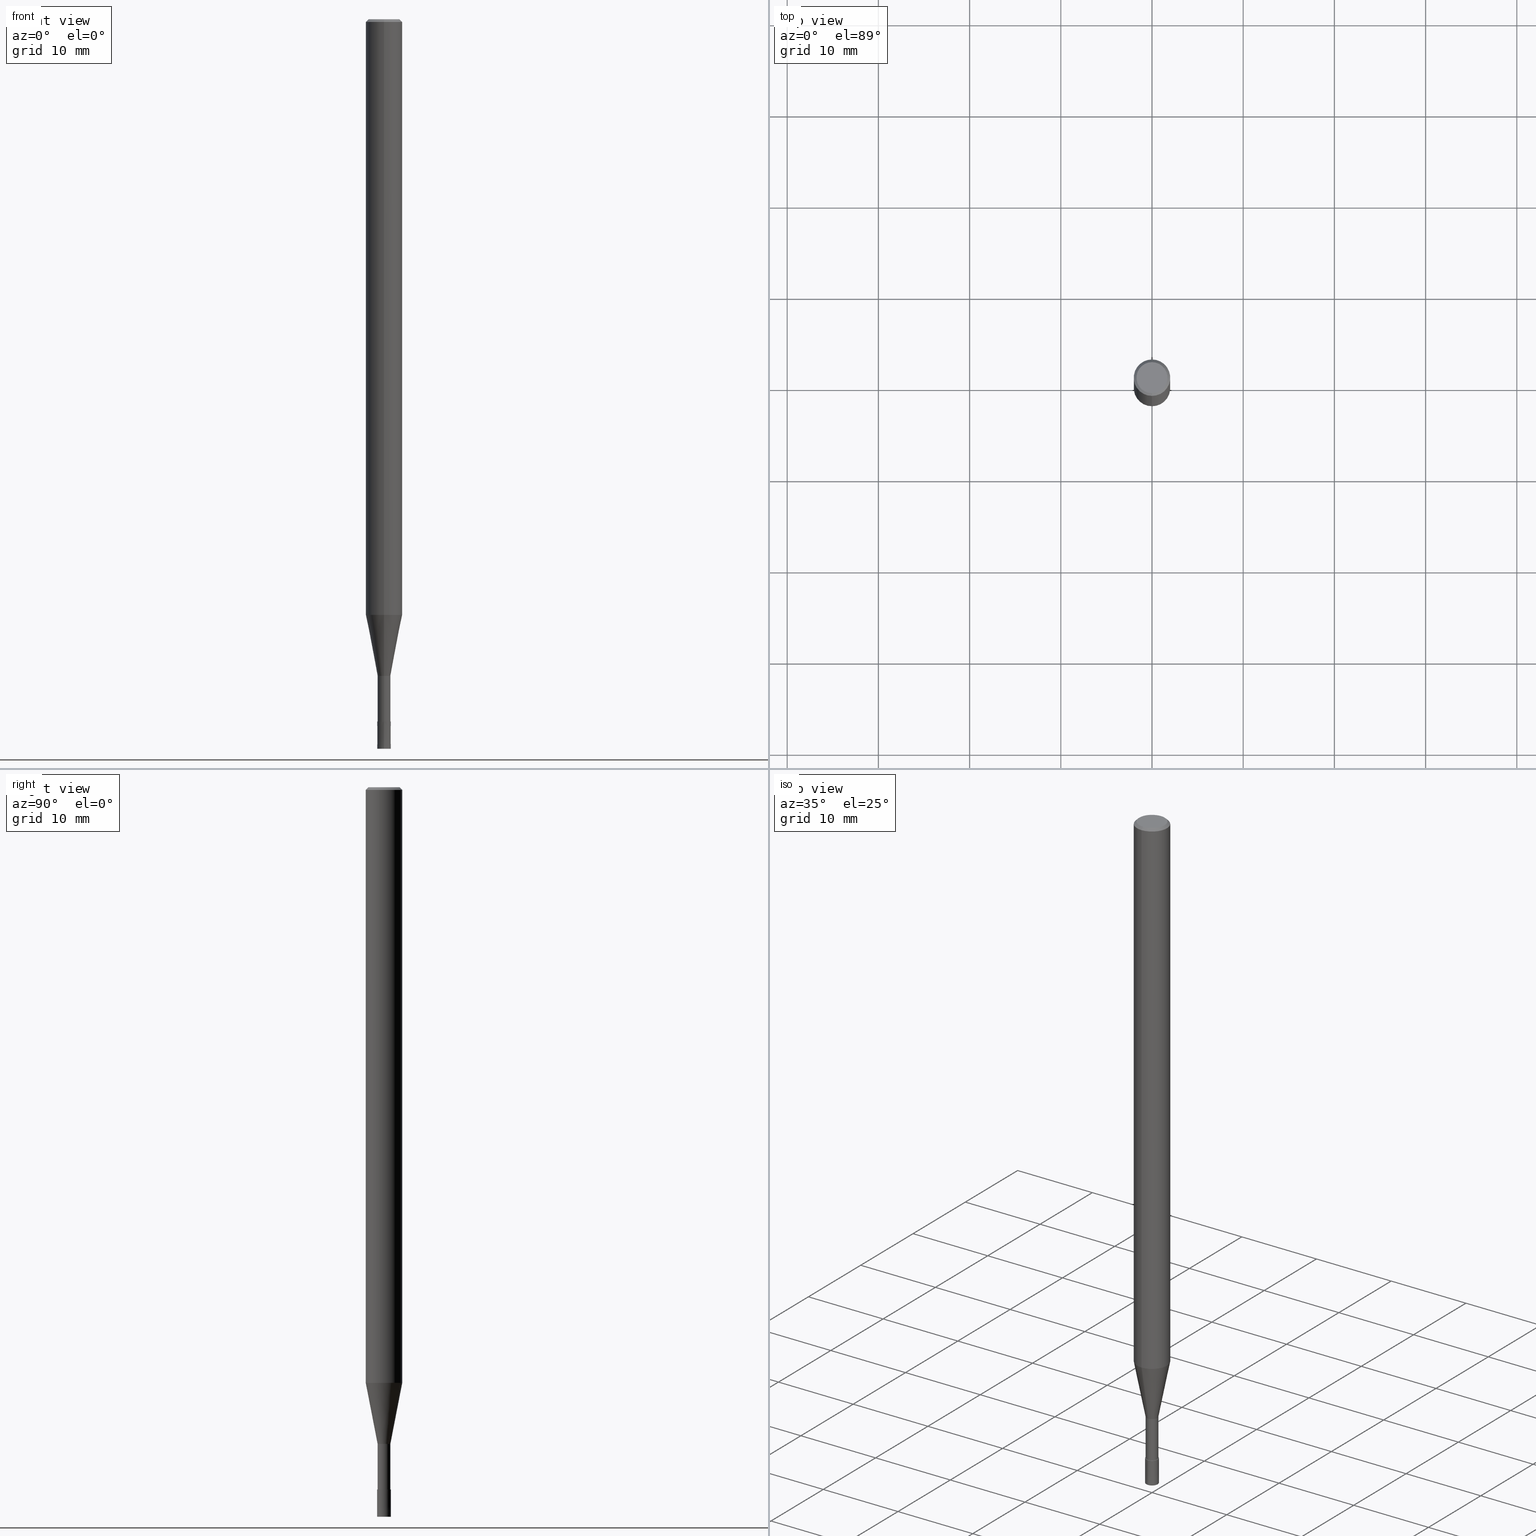
[diagram: canonical four-view strip — front | top / right | iso, engineering-drawing reading convention]
A machine part, canonical four-view strip (front | top / right | iso — engineering-drawing reading convention). The complete STEP part file that produces these views, byte-faithful:
ISO-10303-21;
HEADER;
FILE_DESCRIPTION(('no description'),'unknown implementation level');
FILE_NAME('CPRL2015-8-Huellk.stp','  ',('CIMSOURCE GmbH'),('CADClick - KiM GmbH - www.kimweb.de'),'unknown preprocess','ACIS','unknown authorization');
FILE_SCHEMA(('automotive_design'));
ENDSEC;
DATA;
#1=MECHANICAL_DESIGN_GEOMETRIC_PRESENTATION_REPRESENTATION(' ',(#14,#15,#16,#17,#18,#19,#20,#21,#22,#23,#24,#25,#26,#27,#28,#29,#30,#31,#32,#33,#34,#35,#36,#37,#38,#39,#40,#41,#42,#43,#44,#45,#46,#47,#48,#49,#50,#51,#52,#53,#54,#55,#56,#57,#58,#59,#60,#61,#62,#63,#64,#65,#66,#67,#68,#69,#70,#71,#72),#10);
#2=PRODUCT_DEFINITION_CONTEXT('',#73,'design');
#3=APPLICATION_PROTOCOL_DEFINITION('INTERNATIONAL STANDARD','automotive_design',1994,#73);
#4=PRODUCT_CATEGORY_RELATIONSHIP('NONE','NONE',#74,#75);
#5=SHAPE_DEFINITION_REPRESENTATION(#76,#77);
#6=PRODUCT_DEFINITION_CONTEXT('',#78,'design');
#7=APPLICATION_PROTOCOL_DEFINITION('INTERNATIONAL STANDARD','automotive_design',1994,#78);
#8=PRODUCT_CATEGORY_RELATIONSHIP('NONE','NONE',#79,#80);
#9=SHAPE_DEFINITION_REPRESENTATION(#81,#82);
#10= (GEOMETRIC_REPRESENTATION_CONTEXT(3)GLOBAL_UNCERTAINTY_ASSIGNED_CONTEXT((#85))GLOBAL_UNIT_ASSIGNED_CONTEXT((#87,#88,#89))REPRESENTATION_CONTEXT('NONE','WORKSPACE'));
#14=STYLED_ITEM('',(#91),#92);
#15=STYLED_ITEM('',(#93),#94);
#16=STYLED_ITEM('',(#95),#96);
#17=STYLED_ITEM('',(#97),#98);
#18=STYLED_ITEM('',(#99),#100);
#19=STYLED_ITEM('',(#101),#102);
#20=STYLED_ITEM('',(#103),#104);
#21=STYLED_ITEM('',(#105),#106);
#22=STYLED_ITEM('',(#107),#108);
#23=STYLED_ITEM('',(#109),#110);
#24=STYLED_ITEM('',(#111),#112);
#25=STYLED_ITEM('',(#113),#114);
#26=STYLED_ITEM('',(#115),#116);
#27=STYLED_ITEM('',(#117),#118);
#28=STYLED_ITEM('',(#119),#120);
#29=STYLED_ITEM('',(#121),#122);
#30=STYLED_ITEM('',(#123),#124);
#31=STYLED_ITEM('',(#125),#126);
#32=STYLED_ITEM('',(#127),#128);
#33=STYLED_ITEM('',(#129),#130);
#34=STYLED_ITEM('',(#131),#132);
#35=STYLED_ITEM('',(#133),#134);
#36=STYLED_ITEM('',(#135),#136);
#37=STYLED_ITEM('',(#137),#138);
#38=STYLED_ITEM('',(#139),#140);
#39=STYLED_ITEM('',(#141),#142);
#40=STYLED_ITEM('',(#143),#144);
#41=STYLED_ITEM('',(#145),#146);
#42=STYLED_ITEM('',(#147),#148);
#43=STYLED_ITEM('',(#149),#150);
#44=STYLED_ITEM('',(#151),#152);
#45=STYLED_ITEM('',(#153),#154);
#46=STYLED_ITEM('',(#155),#156);
#47=STYLED_ITEM('',(#157),#158);
#48=STYLED_ITEM('',(#159),#160);
#49=STYLED_ITEM('',(#161),#162);
#50=STYLED_ITEM('',(#163),#164);
#51=STYLED_ITEM('',(#165),#166);
#52=STYLED_ITEM('',(#167),#168);
#53=STYLED_ITEM('',(#169),#170);
#54=STYLED_ITEM('',(#171),#172);
#55=STYLED_ITEM('',(#173),#174);
#56=STYLED_ITEM('',(#175),#176);
#57=STYLED_ITEM('',(#177),#178);
#58=STYLED_ITEM('',(#179),#180);
#59=STYLED_ITEM('',(#181),#182);
#60=STYLED_ITEM('',(#183),#184);
#61=STYLED_ITEM('',(#185),#186);
#62=STYLED_ITEM('',(#187),#188);
#63=STYLED_ITEM('',(#189),#190);
#64=STYLED_ITEM('',(#191),#192);
#65=STYLED_ITEM('',(#193),#194);
#66=STYLED_ITEM('',(#195),#196);
#67=STYLED_ITEM('',(#197),#198);
#68=STYLED_ITEM('',(#199),#200);
#69=STYLED_ITEM('',(#201),#202);
#70=STYLED_ITEM('',(#203),#204);
#71=STYLED_ITEM('',(#205),#206);
#72=STYLED_ITEM('',(#207),#208);
#73=APPLICATION_CONTEXT(' ');
#74=PRODUCT_CATEGORY('part','NONE');
#75=PRODUCT_RELATED_PRODUCT_CATEGORY('detail',' ',(#209));
#76=PRODUCT_DEFINITION_SHAPE('NONE','NONE',#210);
#77=ADVANCED_BREP_SHAPE_REPRESENTATION('1',(#196,#211),#10);
#78=APPLICATION_CONTEXT(' ');
#79=PRODUCT_CATEGORY('part','NONE');
#80=PRODUCT_RELATED_PRODUCT_CATEGORY('detail',' ',(#212));
#81=PRODUCT_DEFINITION_SHAPE('NONE','NONE',#213);
#82=ADVANCED_BREP_SHAPE_REPRESENTATION('2',(#200,#214),#10);
#85=UNCERTAINTY_MEASURE_WITH_UNIT(LENGTH_MEASURE(1.0E-006),#87,'','');
#87= (CONVERSION_BASED_UNIT('MILLIMETRE',#217)LENGTH_UNIT()NAMED_UNIT(#220));
#88= (NAMED_UNIT(#222)PLANE_ANGLE_UNIT()SI_UNIT($,.RADIAN.));
#89= (NAMED_UNIT(#222)SOLID_ANGLE_UNIT()SI_UNIT($,.STERADIAN.));
#91=PRESENTATION_STYLE_ASSIGNMENT((#228));
#92=EDGE_CURVE('',#126,#120,#229,.T.);
#93=PRESENTATION_STYLE_ASSIGNMENT((#230));
#94=ADVANCED_FACE('',(#231),#232,.T.);
#95=PRESENTATION_STYLE_ASSIGNMENT((#233));
#96=EDGE_CURVE('',#168,#104,#234,.T.);
#97=PRESENTATION_STYLE_ASSIGNMENT((#235));
#98=EDGE_CURVE('',#190,#208,#236,.T.);
#99=PRESENTATION_STYLE_ASSIGNMENT((#237));
#100=ADVANCED_FACE('',(#238),#239,.T.);
#101=PRESENTATION_STYLE_ASSIGNMENT((#240));
#102=ADVANCED_FACE('',(#241),#242,.T.);
#103=PRESENTATION_STYLE_ASSIGNMENT((#243));
#104=VERTEX_POINT('',#244);
#105=PRESENTATION_STYLE_ASSIGNMENT((#245));
#106=EDGE_CURVE('',#168,#184,#246,.T.);
#107=PRESENTATION_STYLE_ASSIGNMENT((#247));
#108=EDGE_CURVE('',#120,#126,#248,.T.);
#109=PRESENTATION_STYLE_ASSIGNMENT((#249));
#110=VERTEX_POINT('',#250);
#111=PRESENTATION_STYLE_ASSIGNMENT((#251));
#112=EDGE_CURVE('',#162,#164,#252,.T.);
#113=PRESENTATION_STYLE_ASSIGNMENT((#253));
#114=EDGE_CURVE('',#140,#184,#254,.T.);
#115=PRESENTATION_STYLE_ASSIGNMENT((#255));
#116=ADVANCED_FACE('',(#256,#257),#258,.T.);
#117=PRESENTATION_STYLE_ASSIGNMENT((#259));
#118=EDGE_CURVE('',#208,#150,#260,.T.);
#119=PRESENTATION_STYLE_ASSIGNMENT((#261));
#120=VERTEX_POINT('',#262);
#121=PRESENTATION_STYLE_ASSIGNMENT((#263));
#122=EDGE_CURVE('',#172,#164,#264,.T.);
#123=PRESENTATION_STYLE_ASSIGNMENT((#265));
#124=EDGE_CURVE('',#120,#172,#266,.T.);
#125=PRESENTATION_STYLE_ASSIGNMENT((#267));
#126=VERTEX_POINT('',#268);
#127=PRESENTATION_STYLE_ASSIGNMENT((#269));
#128=EDGE_CURVE('',#208,#190,#270,.T.);
#129=PRESENTATION_STYLE_ASSIGNMENT((#271));
#130=ADVANCED_FACE('',(#272),#273,.T.);
#131=PRESENTATION_STYLE_ASSIGNMENT((#274));
#132=ADVANCED_FACE('',(#275),#276,.T.);
#133=PRESENTATION_STYLE_ASSIGNMENT((#277));
#134=VERTEX_POINT('',#278);
#135=PRESENTATION_STYLE_ASSIGNMENT((#279));
#136=ADVANCED_FACE('',(#280),#281,.T.);
#137=PRESENTATION_STYLE_ASSIGNMENT((#282));
#138=EDGE_CURVE('',#110,#126,#283,.T.);
#139=PRESENTATION_STYLE_ASSIGNMENT((#284));
#140=VERTEX_POINT('',#285);
#141=PRESENTATION_STYLE_ASSIGNMENT((#286));
#142=ADVANCED_FACE('',(#287),#288,.T.);
#143=PRESENTATION_STYLE_ASSIGNMENT((#289));
#144=VERTEX_POINT('',#290);
#145=PRESENTATION_STYLE_ASSIGNMENT((#291));
#146=ADVANCED_FACE('',(#292),#293,.T.);
#147=PRESENTATION_STYLE_ASSIGNMENT((#294));
#148=ADVANCED_FACE('',(#295),#296,.T.);
#149=PRESENTATION_STYLE_ASSIGNMENT((#297));
#150=VERTEX_POINT('',#298);
#151=PRESENTATION_STYLE_ASSIGNMENT((#299));
#152=ADVANCED_FACE('',(#300),#301,.T.);
#153=PRESENTATION_STYLE_ASSIGNMENT((#302));
#154=EDGE_CURVE('',#144,#198,#303,.T.);
#155=PRESENTATION_STYLE_ASSIGNMENT((#304));
#156=ADVANCED_FACE('',(#305),#306,.T.);
#157=PRESENTATION_STYLE_ASSIGNMENT((#307));
#158=EDGE_CURVE('',#134,#150,#308,.T.);
#159=PRESENTATION_STYLE_ASSIGNMENT((#309));
#160=ADVANCED_FACE('',(#310),#311,.T.);
#161=PRESENTATION_STYLE_ASSIGNMENT((#312));
#162=VERTEX_POINT('',#313);
#163=PRESENTATION_STYLE_ASSIGNMENT((#314));
#164=VERTEX_POINT('',#315);
#165=PRESENTATION_STYLE_ASSIGNMENT((#316));
#166=EDGE_CURVE('',#110,#172,#317,.T.);
#167=PRESENTATION_STYLE_ASSIGNMENT((#318));
#168=VERTEX_POINT('',#319);
#169=PRESENTATION_STYLE_ASSIGNMENT((#320));
#170=EDGE_CURVE('',#164,#162,#321,.T.);
#171=PRESENTATION_STYLE_ASSIGNMENT((#322));
#172=VERTEX_POINT('',#323);
#173=PRESENTATION_STYLE_ASSIGNMENT((#324));
#174=EDGE_CURVE('',#162,#110,#325,.T.);
#175=PRESENTATION_STYLE_ASSIGNMENT((#326));
#176=ADVANCED_FACE('',(#327),#328,.T.);
#177=PRESENTATION_STYLE_ASSIGNMENT((#329));
#178=EDGE_CURVE('',#190,#198,#330,.T.);
#179=PRESENTATION_STYLE_ASSIGNMENT((#331));
#180=EDGE_CURVE('',#144,#208,#332,.T.);
#181=PRESENTATION_STYLE_ASSIGNMENT((#333));
#182=EDGE_CURVE('',#140,#104,#334,.T.);
#183=PRESENTATION_STYLE_ASSIGNMENT((#335));
#184=VERTEX_POINT('',#336);
#185=PRESENTATION_STYLE_ASSIGNMENT((#337));
#186=EDGE_CURVE('',#104,#168,#338,.T.);
#187=PRESENTATION_STYLE_ASSIGNMENT((#339));
#188=EDGE_CURVE('',#184,#140,#340,.T.);
#189=PRESENTATION_STYLE_ASSIGNMENT((#341));
#190=VERTEX_POINT('',#342);
#191=PRESENTATION_STYLE_ASSIGNMENT((#343));
#192=EDGE_CURVE('',#134,#190,#344,.T.);
#193=PRESENTATION_STYLE_ASSIGNMENT((#345));
#194=EDGE_CURVE('',#150,#134,#346,.T.);
#195=PRESENTATION_STYLE_ASSIGNMENT((#347));
#196=MANIFOLD_SOLID_BREP('1',#348);
#197=PRESENTATION_STYLE_ASSIGNMENT((#349));
#198=VERTEX_POINT('',#350);
#199=PRESENTATION_STYLE_ASSIGNMENT((#351));
#200=MANIFOLD_SOLID_BREP('2',#352);
#201=PRESENTATION_STYLE_ASSIGNMENT((#353));
#202=EDGE_CURVE('',#172,#110,#354,.T.);
#203=PRESENTATION_STYLE_ASSIGNMENT((#355));
#204=EDGE_CURVE('',#198,#144,#356,.T.);
#205=PRESENTATION_STYLE_ASSIGNMENT((#357));
#206=ADVANCED_FACE('',(#358),#359,.T.);
#207=PRESENTATION_STYLE_ASSIGNMENT((#360));
#208=VERTEX_POINT('',#361);
#209=PRODUCT('1','1','PART-1-DESC',(#362));
#210=PRODUCT_DEFINITION('NONE','NONE',#363,#2);
#211=AXIS2_PLACEMENT_3D('',#364,#365,#366);
#212=PRODUCT('2','2','PART-2-DESC',(#367));
#213=PRODUCT_DEFINITION('NONE','NONE',#368,#6);
#214=AXIS2_PLACEMENT_3D('',#369,#370,#371);
#217=LENGTH_MEASURE_WITH_UNIT(LENGTH_MEASURE(1.0),#372);
#220=DIMENSIONAL_EXPONENTS(1.0,0.0,0.0,0.0,0.0,0.0,0.0);
#222=DIMENSIONAL_EXPONENTS(0.0,0.0,0.0,0.0,0.0,0.0,0.0);
#228=CURVE_STYLE('',#373,POSITIVE_LENGTH_MEASURE(1.0E-006),#374);
#229=CIRCLE('',#375,0.69995);
#230=SURFACE_STYLE_USAGE(.BOTH.,#376);
#231=FACE_OUTER_BOUND('',#377,.T.);
#232=CYLINDRICAL_SURFACE('',#378,0.69995);
#233=CURVE_STYLE('',#379,POSITIVE_LENGTH_MEASURE(1.0E-006),#380);
#234=CIRCLE('',#381,0.75);
#235=CURVE_STYLE('',#382,POSITIVE_LENGTH_MEASURE(1.0E-006),#383);
#236=CIRCLE('',#384,2.0);
#237=SURFACE_STYLE_USAGE(.BOTH.,#385);
#238=FACE_OUTER_BOUND('',#386,.T.);
#239=CONICAL_SURFACE('',#387,1.34995,0.191983983430966);
#240=SURFACE_STYLE_USAGE(.BOTH.,#388);
#241=FACE_OUTER_BOUND('',#389,.T.);
#242=CONICAL_SURFACE('',#390,1.85,0.785398163397453);
#243=POINT_STYLE(' ',#391,POSITIVE_LENGTH_MEASURE(1.0E-006),#392);
#244=CARTESIAN_POINT('',(0.0,0.75,-80.0));
#245=CURVE_STYLE('',#393,POSITIVE_LENGTH_MEASURE(1.0E-006),#394);
#246=LINE('',#395,#396);
#247=CURVE_STYLE('',#397,POSITIVE_LENGTH_MEASURE(1.0E-006),#398);
#248=CIRCLE('',#399,0.69995);
#249=POINT_STYLE(' ',#400,POSITIVE_LENGTH_MEASURE(1.0E-006),#401);
#250=CARTESIAN_POINT('',(0.0,0.69995,-72.0));
#251=CURVE_STYLE('',#402,POSITIVE_LENGTH_MEASURE(1.0E-006),#403);
#252=CIRCLE('',#404,1.99995);
#253=CURVE_STYLE('',#405,POSITIVE_LENGTH_MEASURE(1.0E-006),#406);
#254=CIRCLE('',#407,0.7499);
#255=SURFACE_STYLE_USAGE(.BOTH.,#408);
#256=FACE_OUTER_BOUND('',#409,.T.);
#257=FACE_BOUND('',#410,.T.);
#258=PLANE('',#411);
#259=CURVE_STYLE('',#412,POSITIVE_LENGTH_MEASURE(1.0E-006),#413);
#260=LINE('',#414,#415);
#261=POINT_STYLE(' ',#416,POSITIVE_LENGTH_MEASURE(1.0E-006),#417);
#262=CARTESIAN_POINT('',(8.57163217357973E-017,-0.69995,-77.0));
#263=CURVE_STYLE('',#418,POSITIVE_LENGTH_MEASURE(1.0E-006),#419);
#264=LINE('',#420,#421);
#265=CURVE_STYLE('',#422,POSITIVE_LENGTH_MEASURE(1.0E-006),#423);
#266=LINE('',#424,#425);
#267=POINT_STYLE(' ',#426,POSITIVE_LENGTH_MEASURE(1.0E-006),#427);
#268=CARTESIAN_POINT('',(0.0,0.69995,-77.0));
#269=CURVE_STYLE('',#428,POSITIVE_LENGTH_MEASURE(1.0E-006),#429);
#270=CIRCLE('',#430,2.0);
#271=SURFACE_STYLE_USAGE(.BOTH.,#431);
#272=FACE_OUTER_BOUND('',#432,.T.);
#273=PLANE('',#433);
#274=SURFACE_STYLE_USAGE(.BOTH.,#434);
#275=FACE_OUTER_BOUND('',#435,.T.);
#276=CONICAL_SURFACE('',#436,0.74995,3.3333333320984E-005);
#277=POINT_STYLE(' ',#437,POSITIVE_LENGTH_MEASURE(1.0E-006),#438);
#278=CARTESIAN_POINT('',(0.0,1.7,0.0));
#279=SURFACE_STYLE_USAGE(.BOTH.,#439);
#280=FACE_OUTER_BOUND('',#440,.T.);
#281=CONICAL_SURFACE('',#441,1.34995,0.191983983430966);
#282=CURVE_STYLE('',#442,POSITIVE_LENGTH_MEASURE(1.0E-006),#443);
#283=LINE('',#444,#445);
#284=POINT_STYLE(' ',#446,POSITIVE_LENGTH_MEASURE(1.0E-006),#447);
#285=CARTESIAN_POINT('',(0.0,0.7499,-77.0));
#286=SURFACE_STYLE_USAGE(.BOTH.,#448);
#287=FACE_OUTER_BOUND('',#449,.T.);
#288=PLANE('',#450);
#289=POINT_STYLE(' ',#451,POSITIVE_LENGTH_MEASURE(1.0E-006),#452);
#290=CARTESIAN_POINT('',(2.44921270764475E-016,-2.0,-65.312));
#291=SURFACE_STYLE_USAGE(.BOTH.,#453);
#292=FACE_OUTER_BOUND('',#454,.T.);
#293=PLANE('',#455);
#294=SURFACE_STYLE_USAGE(.BOTH.,#456);
#295=FACE_OUTER_BOUND('',#457,.T.);
#296=CYLINDRICAL_SURFACE('',#458,2.0);
#297=POINT_STYLE(' ',#459,POSITIVE_LENGTH_MEASURE(1.0E-006),#460);
#298=CARTESIAN_POINT('',(2.08183080149804E-016,-1.7,0.0));
#299=SURFACE_STYLE_USAGE(.BOTH.,#461);
#300=FACE_OUTER_BOUND('',#462,.T.);
#301=CYLINDRICAL_SURFACE('',#463,0.69995);
#302=CURVE_STYLE('',#464,POSITIVE_LENGTH_MEASURE(1.0E-006),#465);
#303=CIRCLE('',#466,2.0);
#304=SURFACE_STYLE_USAGE(.BOTH.,#467);
#305=FACE_OUTER_BOUND('',#468,.T.);
#306=CONICAL_SURFACE('',#469,0.74995,3.3333333320984E-005);
#307=CURVE_STYLE('',#470,POSITIVE_LENGTH_MEASURE(1.0E-006),#471);
#308=CIRCLE('',#472,1.7);
#309=SURFACE_STYLE_USAGE(.BOTH.,#473);
#310=FACE_OUTER_BOUND('',#474,.T.);
#311=PLANE('',#475);
#312=POINT_STYLE(' ',#476,POSITIVE_LENGTH_MEASURE(1.0E-006),#477);
#313=CARTESIAN_POINT('',(0.0,1.99995,-65.312));
#314=POINT_STYLE(' ',#478,POSITIVE_LENGTH_MEASURE(1.0E-006),#479);
#315=CARTESIAN_POINT('',(2.44915147732706E-016,-1.99995,-65.312));
#316=CURVE_STYLE('',#480,POSITIVE_LENGTH_MEASURE(1.0E-006),#481);
#317=CIRCLE('',#482,0.69995);
#318=POINT_STYLE(' ',#483,POSITIVE_LENGTH_MEASURE(1.0E-006),#484);
#319=CARTESIAN_POINT('',(9.18454765366783E-017,-0.75,-80.0));
#320=CURVE_STYLE('',#485,POSITIVE_LENGTH_MEASURE(1.0E-006),#486);
#321=CIRCLE('',#487,1.99995);
#322=POINT_STYLE(' ',#488,POSITIVE_LENGTH_MEASURE(1.0E-006),#489);
#323=CARTESIAN_POINT('',(8.57163217357973E-017,-0.69995,-72.0));
#324=CURVE_STYLE('',#490,POSITIVE_LENGTH_MEASURE(1.0E-006),#491);
#325=LINE('',#492,#493);
#326=SURFACE_STYLE_USAGE(.BOTH.,#494);
#327=FACE_OUTER_BOUND('',#495,.T.);
#328=CONICAL_SURFACE('',#496,1.85,0.785398163397453);
#329=CURVE_STYLE('',#497,POSITIVE_LENGTH_MEASURE(1.0E-006),#498);
#330=LINE('',#499,#500);
#331=CURVE_STYLE('',#501,POSITIVE_LENGTH_MEASURE(1.0E-006),#502);
#332=LINE('',#503,#504);
#333=CURVE_STYLE('',#505,POSITIVE_LENGTH_MEASURE(1.0E-006),#506);
#334=LINE('',#507,#508);
#335=POINT_STYLE(' ',#509,POSITIVE_LENGTH_MEASURE(1.0E-006),#510);
#336=CARTESIAN_POINT('',(9.18332304731401E-017,-0.7499,-77.0));
#337=CURVE_STYLE('',#511,POSITIVE_LENGTH_MEASURE(1.0E-006),#512);
#338=CIRCLE('',#513,0.75);
#339=CURVE_STYLE('',#514,POSITIVE_LENGTH_MEASURE(1.0E-006),#515);
#340=CIRCLE('',#516,0.7499);
#341=POINT_STYLE(' ',#517,POSITIVE_LENGTH_MEASURE(1.0E-006),#518);
#342=CARTESIAN_POINT('',(0.0,2.0,-0.299999999999997));
#343=CURVE_STYLE('',#519,POSITIVE_LENGTH_MEASURE(1.0E-006),#520);
#344=LINE('',#521,#522);
#345=CURVE_STYLE('',#523,POSITIVE_LENGTH_MEASURE(1.0E-006),#524);
#346=CIRCLE('',#525,1.7);
#347=SURFACE_STYLE_USAGE(.BOTH.,#526);
#348=CLOSED_SHELL('',(#152,#136,#148,#102,#116,#142,#176,#206,#100,#94,#130));
#349=POINT_STYLE(' ',#527,POSITIVE_LENGTH_MEASURE(1.0E-006),#528);
#350=CARTESIAN_POINT('',(0.0,2.0,-65.312));
#351=SURFACE_STYLE_USAGE(.BOTH.,#529);
#352=CLOSED_SHELL('',(#132,#160,#156,#146));
#353=CURVE_STYLE('',#530,POSITIVE_LENGTH_MEASURE(1.0E-006),#531);
#354=CIRCLE('',#532,0.69995);
#355=CURVE_STYLE('',#533,POSITIVE_LENGTH_MEASURE(1.0E-006),#534);
#356=CIRCLE('',#535,2.0);
#357=SURFACE_STYLE_USAGE(.BOTH.,#536);
#358=FACE_OUTER_BOUND('',#537,.T.);
#359=CYLINDRICAL_SURFACE('',#538,2.0);
#360=POINT_STYLE(' ',#539,POSITIVE_LENGTH_MEASURE(1.0E-006),#540);
#361=CARTESIAN_POINT('',(2.44921270764475E-016,-2.0,-0.299999999999997));
#362=PRODUCT_CONTEXT('',#73,'mechanical');
#363=PRODUCT_DEFINITION_FORMATION_WITH_SPECIFIED_SOURCE(' ','NONE',#209,.NOT_KNOWN.);
#364=CARTESIAN_POINT('',(0.0,0.0,0.0));
#365=DIRECTION('',(0.0,0.0,1.0));
#366=DIRECTION('',(1.0,0.0,0.0));
#367=PRODUCT_CONTEXT('',#78,'mechanical');
#368=PRODUCT_DEFINITION_FORMATION_WITH_SPECIFIED_SOURCE(' ','NONE',#212,.NOT_KNOWN.);
#369=CARTESIAN_POINT('',(0.0,0.0,0.0));
#370=DIRECTION('',(0.0,0.0,1.0));
#371=DIRECTION('',(1.0,0.0,0.0));
#372= (NAMED_UNIT(#220)LENGTH_UNIT()SI_UNIT(.MILLI.,.METRE.));
#373=DRAUGHTING_PRE_DEFINED_CURVE_FONT('continuous');
#374=COLOUR_RGB('',0.498039215803146,0.498039215803146,0.498039215803146);
#375=AXIS2_PLACEMENT_3D('',#542,#543,#544);
#376=SURFACE_SIDE_STYLE('',(#545));
#377=EDGE_LOOP('',(#546,#547,#548,#549));
#378=AXIS2_PLACEMENT_3D('',#550,#551,#552);
#379=DRAUGHTING_PRE_DEFINED_CURVE_FONT('continuous');
#380=COLOUR_RGB('',0.800000011920929,0.800000011920929,0.800000011920929);
#381=AXIS2_PLACEMENT_3D('',#553,#554,#555);
#382=DRAUGHTING_PRE_DEFINED_CURVE_FONT('continuous');
#383=COLOUR_RGB('',0.498039215803146,0.498039215803146,0.498039215803146);
#384=AXIS2_PLACEMENT_3D('',#556,#557,#558);
#385=SURFACE_SIDE_STYLE('',(#559));
#386=EDGE_LOOP('',(#560,#561,#562,#563));
#387=AXIS2_PLACEMENT_3D('',#564,#565,#566);
#388=SURFACE_SIDE_STYLE('',(#567));
#389=EDGE_LOOP('',(#568,#569,#570,#571));
#390=AXIS2_PLACEMENT_3D('',#572,#573,#574);
#391=PRE_DEFINED_MARKER('');
#392=COLOUR_RGB('',0.800000011920929,0.800000011920929,0.800000011920929);
#393=DRAUGHTING_PRE_DEFINED_CURVE_FONT('continuous');
#394=COLOUR_RGB('',0.800000011920929,0.800000011920929,0.800000011920929);
#395=CARTESIAN_POINT('',(9.18393535049092E-017,-0.74995,-78.5));
#396=VECTOR('',#575,1.0);
#397=DRAUGHTING_PRE_DEFINED_CURVE_FONT('continuous');
#398=COLOUR_RGB('',0.498039215803146,0.498039215803146,0.498039215803146);
#399=AXIS2_PLACEMENT_3D('',#576,#577,#578);
#400=PRE_DEFINED_MARKER('');
#401=COLOUR_RGB('',0.498039215803146,0.498039215803146,0.498039215803146);
#402=DRAUGHTING_PRE_DEFINED_CURVE_FONT('continuous');
#403=COLOUR_RGB('',0.498039215803146,0.498039215803146,0.498039215803146);
#404=AXIS2_PLACEMENT_3D('',#579,#580,#581);
#405=DRAUGHTING_PRE_DEFINED_CURVE_FONT('continuous');
#406=COLOUR_RGB('',0.800000011920929,0.800000011920929,0.800000011920929);
#407=AXIS2_PLACEMENT_3D('',#582,#583,#584);
#408=SURFACE_SIDE_STYLE('',(#585));
#409=EDGE_LOOP('',(#586,#587));
#410=EDGE_LOOP('',(#588,#589));
#411=AXIS2_PLACEMENT_3D('',#590,#591,#592);
#412=DRAUGHTING_PRE_DEFINED_CURVE_FONT('continuous');
#413=COLOUR_RGB('',0.498039215803146,0.498039215803146,0.498039215803146);
#414=CARTESIAN_POINT('',(2.2655217545714E-016,-1.85,-0.149999999999991));
#415=VECTOR('',#593,1.0);
#416=PRE_DEFINED_MARKER('');
#417=COLOUR_RGB('',0.498039215803146,0.498039215803146,0.498039215803146);
#418=DRAUGHTING_PRE_DEFINED_CURVE_FONT('continuous');
#419=COLOUR_RGB('',0.498039215803146,0.498039215803146,0.498039215803146);
#420=CARTESIAN_POINT('',(1.65315734734252E-016,-1.34995,-68.656));
#421=VECTOR('',#594,1.0);
#422=DRAUGHTING_PRE_DEFINED_CURVE_FONT('continuous');
#423=COLOUR_RGB('',0.498039215803146,0.498039215803146,0.498039215803146);
#424=CARTESIAN_POINT('',(8.57163217357973E-017,-0.69995,-74.5));
#425=VECTOR('',#595,1.0);
#426=PRE_DEFINED_MARKER('');
#427=COLOUR_RGB('',0.498039215803146,0.498039215803146,0.498039215803146);
#428=DRAUGHTING_PRE_DEFINED_CURVE_FONT('continuous');
#429=COLOUR_RGB('',0.498039215803146,0.498039215803146,0.498039215803146);
#430=AXIS2_PLACEMENT_3D('',#596,#597,#598);
#431=SURFACE_SIDE_STYLE('',(#599));
#432=EDGE_LOOP('',(#600,#601));
#433=AXIS2_PLACEMENT_3D('',#602,#603,#604);
#434=SURFACE_SIDE_STYLE('',(#605));
#435=EDGE_LOOP('',(#606,#607,#608,#609));
#436=AXIS2_PLACEMENT_3D('',#610,#611,#612);
#437=PRE_DEFINED_MARKER('');
#438=COLOUR_RGB('',0.498039215803146,0.498039215803146,0.498039215803146);
#439=SURFACE_SIDE_STYLE('',(#613));
#440=EDGE_LOOP('',(#614,#615,#616,#617));
#441=AXIS2_PLACEMENT_3D('',#618,#619,#620);
#442=DRAUGHTING_PRE_DEFINED_CURVE_FONT('continuous');
#443=COLOUR_RGB('',0.498039215803146,0.498039215803146,0.498039215803146);
#444=CARTESIAN_POINT('',(-8.57163217357973E-017,0.69995,-74.5));
#445=VECTOR('',#621,1.0);
#446=PRE_DEFINED_MARKER('');
#447=COLOUR_RGB('',0.800000011920929,0.800000011920929,0.800000011920929);
#448=SURFACE_SIDE_STYLE('',(#622));
#449=EDGE_LOOP('',(#623,#624));
#450=AXIS2_PLACEMENT_3D('',#625,#626,#627);
#451=PRE_DEFINED_MARKER('');
#452=COLOUR_RGB('',0.498039215803146,0.498039215803146,0.498039215803146);
#453=SURFACE_SIDE_STYLE('',(#628));
#454=EDGE_LOOP('',(#629,#630));
#455=AXIS2_PLACEMENT_3D('',#631,#632,#633);
#456=SURFACE_SIDE_STYLE('',(#634));
#457=EDGE_LOOP('',(#635,#636,#637,#638));
#458=AXIS2_PLACEMENT_3D('',#639,#640,#641);
#459=PRE_DEFINED_MARKER('');
#460=COLOUR_RGB('',0.498039215803146,0.498039215803146,0.498039215803146);
#461=SURFACE_SIDE_STYLE('',(#642));
#462=EDGE_LOOP('',(#643,#644,#645,#646));
#463=AXIS2_PLACEMENT_3D('',#647,#648,#649);
#464=DRAUGHTING_PRE_DEFINED_CURVE_FONT('continuous');
#465=COLOUR_RGB('',0.498039215803146,0.498039215803146,0.498039215803146);
#466=AXIS2_PLACEMENT_3D('',#650,#651,#652);
#467=SURFACE_SIDE_STYLE('',(#653));
#468=EDGE_LOOP('',(#654,#655,#656,#657));
#469=AXIS2_PLACEMENT_3D('',#658,#659,#660);
#470=DRAUGHTING_PRE_DEFINED_CURVE_FONT('continuous');
#471=COLOUR_RGB('',0.498039215803146,0.498039215803146,0.498039215803146);
#472=AXIS2_PLACEMENT_3D('',#661,#662,#663);
#473=SURFACE_SIDE_STYLE('',(#664));
#474=EDGE_LOOP('',(#665,#666));
#475=AXIS2_PLACEMENT_3D('',#667,#668,#669);
#476=PRE_DEFINED_MARKER('');
#477=COLOUR_RGB('',0.498039215803146,0.498039215803146,0.498039215803146);
#478=PRE_DEFINED_MARKER('');
#479=COLOUR_RGB('',0.498039215803146,0.498039215803146,0.498039215803146);
#480=DRAUGHTING_PRE_DEFINED_CURVE_FONT('continuous');
#481=COLOUR_RGB('',0.498039215803146,0.498039215803146,0.498039215803146);
#482=AXIS2_PLACEMENT_3D('',#670,#671,#672);
#483=PRE_DEFINED_MARKER('');
#484=COLOUR_RGB('',0.800000011920929,0.800000011920929,0.800000011920929);
#485=DRAUGHTING_PRE_DEFINED_CURVE_FONT('continuous');
#486=COLOUR_RGB('',0.498039215803146,0.498039215803146,0.498039215803146);
#487=AXIS2_PLACEMENT_3D('',#673,#674,#675);
#488=PRE_DEFINED_MARKER('');
#489=COLOUR_RGB('',0.498039215803146,0.498039215803146,0.498039215803146);
#490=DRAUGHTING_PRE_DEFINED_CURVE_FONT('continuous');
#491=COLOUR_RGB('',0.498039215803146,0.498039215803146,0.498039215803146);
#492=CARTESIAN_POINT('',(-1.65315734734252E-016,1.34995,-68.656));
#493=VECTOR('',#676,1.0);
#494=SURFACE_SIDE_STYLE('',(#677));
#495=EDGE_LOOP('',(#678,#679,#680,#681));
#496=AXIS2_PLACEMENT_3D('',#682,#683,#684);
#497=DRAUGHTING_PRE_DEFINED_CURVE_FONT('continuous');
#498=COLOUR_RGB('',0.498039215803146,0.498039215803146,0.498039215803146);
#499=CARTESIAN_POINT('',(-2.44921270764475E-016,2.0,-32.806));
#500=VECTOR('',#685,1.0);
#501=DRAUGHTING_PRE_DEFINED_CURVE_FONT('continuous');
#502=COLOUR_RGB('',0.498039215803146,0.498039215803146,0.498039215803146);
#503=CARTESIAN_POINT('',(2.44921270764475E-016,-2.0,-32.806));
#504=VECTOR('',#686,1.0);
#505=DRAUGHTING_PRE_DEFINED_CURVE_FONT('continuous');
#506=COLOUR_RGB('',0.800000011920929,0.800000011920929,0.800000011920929);
#507=CARTESIAN_POINT('',(-9.18393535049092E-017,0.74995,-78.5));
#508=VECTOR('',#687,1.0);
#509=PRE_DEFINED_MARKER('');
#510=COLOUR_RGB('',0.800000011920929,0.800000011920929,0.800000011920929);
#511=DRAUGHTING_PRE_DEFINED_CURVE_FONT('continuous');
#512=COLOUR_RGB('',0.800000011920929,0.800000011920929,0.800000011920929);
#513=AXIS2_PLACEMENT_3D('',#688,#689,#690);
#514=DRAUGHTING_PRE_DEFINED_CURVE_FONT('continuous');
#515=COLOUR_RGB('',0.800000011920929,0.800000011920929,0.800000011920929);
#516=AXIS2_PLACEMENT_3D('',#691,#692,#693);
#517=PRE_DEFINED_MARKER('');
#518=COLOUR_RGB('',0.498039215803146,0.498039215803146,0.498039215803146);
#519=DRAUGHTING_PRE_DEFINED_CURVE_FONT('continuous');
#520=COLOUR_RGB('',0.498039215803146,0.498039215803146,0.498039215803146);
#521=CARTESIAN_POINT('',(-2.2655217545714E-016,1.85,-0.149999999999991));
#522=VECTOR('',#694,1.0);
#523=DRAUGHTING_PRE_DEFINED_CURVE_FONT('continuous');
#524=COLOUR_RGB('',0.498039215803146,0.498039215803146,0.498039215803146);
#525=AXIS2_PLACEMENT_3D('',#695,#696,#697);
#526=SURFACE_SIDE_STYLE('',(#698));
#527=PRE_DEFINED_MARKER('');
#528=COLOUR_RGB('',0.498039215803146,0.498039215803146,0.498039215803146);
#529=SURFACE_SIDE_STYLE('',(#699));
#530=DRAUGHTING_PRE_DEFINED_CURVE_FONT('continuous');
#531=COLOUR_RGB('',0.498039215803146,0.498039215803146,0.498039215803146);
#532=AXIS2_PLACEMENT_3D('',#700,#701,#702);
#533=DRAUGHTING_PRE_DEFINED_CURVE_FONT('continuous');
#534=COLOUR_RGB('',0.498039215803146,0.498039215803146,0.498039215803146);
#535=AXIS2_PLACEMENT_3D('',#703,#704,#705);
#536=SURFACE_SIDE_STYLE('',(#706));
#537=EDGE_LOOP('',(#707,#708,#709,#710));
#538=AXIS2_PLACEMENT_3D('',#711,#712,#713);
#539=PRE_DEFINED_MARKER('');
#540=COLOUR_RGB('',0.498039215803146,0.498039215803146,0.498039215803146);
#542=CARTESIAN_POINT('',(0.0,0.0,-77.0));
#543=DIRECTION('',(0.0,0.0,-1.0));
#544=DIRECTION('',(0.0,1.0,0.0));
#545=SURFACE_STYLE_FILL_AREA(#714);
#546=ORIENTED_EDGE('',*,*,#138,.T.);
#547=ORIENTED_EDGE('',*,*,#108,.F.);
#548=ORIENTED_EDGE('',*,*,#124,.T.);
#549=ORIENTED_EDGE('',*,*,#202,.T.);
#550=CARTESIAN_POINT('',(0.0,0.0,-74.5));
#551=DIRECTION('',(-0.0,-0.0,1.0));
#552=DIRECTION('',(0.0,1.0,0.0));
#553=CARTESIAN_POINT('',(0.0,0.0,-80.0));
#554=DIRECTION('',(0.0,0.0,-1.0));
#555=DIRECTION('',(0.0,1.0,0.0));
#556=CARTESIAN_POINT('',(0.0,0.0,-0.299999999999997));
#557=DIRECTION('',(0.0,0.0,-1.0));
#558=DIRECTION('',(0.0,1.0,0.0));
#559=SURFACE_STYLE_FILL_AREA(#715);
#560=ORIENTED_EDGE('',*,*,#174,.T.);
#561=ORIENTED_EDGE('',*,*,#202,.F.);
#562=ORIENTED_EDGE('',*,*,#122,.T.);
#563=ORIENTED_EDGE('',*,*,#170,.T.);
#564=CARTESIAN_POINT('',(0.0,0.0,-68.656));
#565=DIRECTION('',(-0.0,-0.0,1.0));
#566=DIRECTION('',(0.0,1.0,0.0));
#567=SURFACE_STYLE_FILL_AREA(#716);
#568=ORIENTED_EDGE('',*,*,#192,.F.);
#569=ORIENTED_EDGE('',*,*,#158,.T.);
#570=ORIENTED_EDGE('',*,*,#118,.F.);
#571=ORIENTED_EDGE('',*,*,#98,.F.);
#572=CARTESIAN_POINT('',(0.0,0.0,-0.149999999999991));
#573=DIRECTION('',(0.0,-0.0,-1.0));
#574=DIRECTION('',(0.0,1.0,0.0));
#575=DIRECTION('',(-4.08202117713969E-021,3.33333333148111E-005,0.999999999444445));
#576=CARTESIAN_POINT('',(0.0,0.0,-77.0));
#577=DIRECTION('',(0.0,0.0,-1.0));
#578=DIRECTION('',(0.0,1.0,0.0));
#579=CARTESIAN_POINT('',(0.0,0.0,-65.312));
#580=DIRECTION('',(0.0,0.0,-1.0));
#581=DIRECTION('',(0.0,1.0,0.0));
#582=CARTESIAN_POINT('',(0.0,0.0,-77.0));
#583=DIRECTION('',(0.0,0.0,-1.0));
#584=DIRECTION('',(0.0,1.0,0.0));
#585=SURFACE_STYLE_FILL_AREA(#717);
#586=ORIENTED_EDGE('',*,*,#204,.T.);
#587=ORIENTED_EDGE('',*,*,#154,.T.);
#588=ORIENTED_EDGE('',*,*,#112,.F.);
#589=ORIENTED_EDGE('',*,*,#170,.F.);
#590=CARTESIAN_POINT('',(0.0,1.0,-65.312));
#591=DIRECTION('',(0.0,0.0,-1.0));
#592=DIRECTION('',(0.0,1.0,0.0));
#593=DIRECTION('',(-8.6592745707194E-017,0.707106781186551,0.707106781186544));
#594=DIRECTION('',(2.33663222250515E-017,-0.19080680213783,0.981627609767541));
#595=DIRECTION('',(-0.0,-0.0,1.0));
#596=CARTESIAN_POINT('',(0.0,0.0,-0.299999999999997));
#597=DIRECTION('',(0.0,0.0,-1.0));
#598=DIRECTION('',(0.0,1.0,0.0));
#599=SURFACE_STYLE_FILL_AREA(#718);
#600=ORIENTED_EDGE('',*,*,#92,.T.);
#601=ORIENTED_EDGE('',*,*,#108,.T.);
#602=CARTESIAN_POINT('',(0.0,0.349975,-77.0));
#603=DIRECTION('',(0.0,0.0,-1.0));
#604=DIRECTION('',(0.0,1.0,0.0));
#605=SURFACE_STYLE_FILL_AREA(#719);
#606=ORIENTED_EDGE('',*,*,#182,.F.);
#607=ORIENTED_EDGE('',*,*,#114,.T.);
#608=ORIENTED_EDGE('',*,*,#106,.F.);
#609=ORIENTED_EDGE('',*,*,#186,.F.);
#610=CARTESIAN_POINT('',(0.0,0.0,-78.5));
#611=DIRECTION('',(0.0,-0.0,-1.0));
#612=DIRECTION('',(0.0,1.0,0.0));
#613=SURFACE_STYLE_FILL_AREA(#720);
#614=ORIENTED_EDGE('',*,*,#174,.F.);
#615=ORIENTED_EDGE('',*,*,#112,.T.);
#616=ORIENTED_EDGE('',*,*,#122,.F.);
#617=ORIENTED_EDGE('',*,*,#166,.F.);
#618=CARTESIAN_POINT('',(0.0,0.0,-68.656));
#619=DIRECTION('',(-0.0,-0.0,1.0));
#620=DIRECTION('',(0.0,1.0,0.0));
#621=DIRECTION('',(0.0,0.0,-1.0));
#622=SURFACE_STYLE_FILL_AREA(#721);
#623=ORIENTED_EDGE('',*,*,#158,.F.);
#624=ORIENTED_EDGE('',*,*,#194,.F.);
#625=CARTESIAN_POINT('',(0.0,0.85,0.0));
#626=DIRECTION('',(-0.0,0.0,1.0));
#627=DIRECTION('',(0.0,-1.0,0.0));
#628=SURFACE_STYLE_FILL_AREA(#722);
#629=ORIENTED_EDGE('',*,*,#186,.T.);
#630=ORIENTED_EDGE('',*,*,#96,.T.);
#631=CARTESIAN_POINT('',(0.0,0.3725,-80.0));
#632=DIRECTION('',(0.0,0.0,-1.0));
#633=DIRECTION('',(0.0,1.0,0.0));
#634=SURFACE_STYLE_FILL_AREA(#723);
#635=ORIENTED_EDGE('',*,*,#178,.F.);
#636=ORIENTED_EDGE('',*,*,#98,.T.);
#637=ORIENTED_EDGE('',*,*,#180,.F.);
#638=ORIENTED_EDGE('',*,*,#204,.F.);
#639=CARTESIAN_POINT('',(0.0,0.0,-32.806));
#640=DIRECTION('',(-0.0,-0.0,1.0));
#641=DIRECTION('',(0.0,1.0,0.0));
#642=SURFACE_STYLE_FILL_AREA(#724);
#643=ORIENTED_EDGE('',*,*,#138,.F.);
#644=ORIENTED_EDGE('',*,*,#166,.T.);
#645=ORIENTED_EDGE('',*,*,#124,.F.);
#646=ORIENTED_EDGE('',*,*,#92,.F.);
#647=CARTESIAN_POINT('',(0.0,0.0,-74.5));
#648=DIRECTION('',(-0.0,-0.0,1.0));
#649=DIRECTION('',(0.0,1.0,0.0));
#650=CARTESIAN_POINT('',(0.0,0.0,-65.312));
#651=DIRECTION('',(0.0,0.0,-1.0));
#652=DIRECTION('',(0.0,1.0,0.0));
#653=SURFACE_STYLE_FILL_AREA(#725);
#654=ORIENTED_EDGE('',*,*,#182,.T.);
#655=ORIENTED_EDGE('',*,*,#96,.F.);
#656=ORIENTED_EDGE('',*,*,#106,.T.);
#657=ORIENTED_EDGE('',*,*,#188,.T.);
#658=CARTESIAN_POINT('',(0.0,0.0,-78.5));
#659=DIRECTION('',(0.0,-0.0,-1.0));
#660=DIRECTION('',(0.0,1.0,0.0));
#661=CARTESIAN_POINT('',(0.0,0.0,0.0));
#662=DIRECTION('',(0.0,0.0,-1.0));
#663=DIRECTION('',(0.0,1.0,0.0));
#664=SURFACE_STYLE_FILL_AREA(#726);
#665=ORIENTED_EDGE('',*,*,#114,.F.);
#666=ORIENTED_EDGE('',*,*,#188,.F.);
#667=CARTESIAN_POINT('',(0.0,0.37495,-77.0));
#668=DIRECTION('',(-0.0,0.0,1.0));
#669=DIRECTION('',(0.0,-1.0,0.0));
#670=CARTESIAN_POINT('',(0.0,0.0,-72.0));
#671=DIRECTION('',(0.0,0.0,-1.0));
#672=DIRECTION('',(0.0,1.0,0.0));
#673=CARTESIAN_POINT('',(0.0,0.0,-65.312));
#674=DIRECTION('',(0.0,0.0,-1.0));
#675=DIRECTION('',(0.0,1.0,0.0));
#676=DIRECTION('',(2.33663222250515E-017,-0.19080680213783,-0.981627609767541));
#677=SURFACE_STYLE_FILL_AREA(#727);
#678=ORIENTED_EDGE('',*,*,#192,.T.);
#679=ORIENTED_EDGE('',*,*,#128,.F.);
#680=ORIENTED_EDGE('',*,*,#118,.T.);
#681=ORIENTED_EDGE('',*,*,#194,.T.);
#682=CARTESIAN_POINT('',(0.0,0.0,-0.149999999999991));
#683=DIRECTION('',(0.0,-0.0,-1.0));
#684=DIRECTION('',(0.0,1.0,0.0));
#685=DIRECTION('',(0.0,0.0,-1.0));
#686=DIRECTION('',(-0.0,-0.0,1.0));
#687=DIRECTION('',(-4.08202117713969E-021,3.33333333148111E-005,-0.999999999444445));
#688=CARTESIAN_POINT('',(0.0,0.0,-80.0));
#689=DIRECTION('',(0.0,0.0,-1.0));
#690=DIRECTION('',(0.0,1.0,0.0));
#691=CARTESIAN_POINT('',(0.0,0.0,-77.0));
#692=DIRECTION('',(0.0,0.0,-1.0));
#693=DIRECTION('',(0.0,1.0,0.0));
#694=DIRECTION('',(-8.6592745707194E-017,0.707106781186551,-0.707106781186544));
#695=CARTESIAN_POINT('',(0.0,0.0,0.0));
#696=DIRECTION('',(0.0,0.0,-1.0));
#697=DIRECTION('',(0.0,1.0,0.0));
#698=SURFACE_STYLE_FILL_AREA(#728);
#699=SURFACE_STYLE_FILL_AREA(#729);
#700=CARTESIAN_POINT('',(0.0,0.0,-72.0));
#701=DIRECTION('',(0.0,0.0,-1.0));
#702=DIRECTION('',(0.0,1.0,0.0));
#703=CARTESIAN_POINT('',(0.0,0.0,-65.312));
#704=DIRECTION('',(0.0,0.0,-1.0));
#705=DIRECTION('',(0.0,1.0,0.0));
#706=SURFACE_STYLE_FILL_AREA(#730);
#707=ORIENTED_EDGE('',*,*,#178,.T.);
#708=ORIENTED_EDGE('',*,*,#154,.F.);
#709=ORIENTED_EDGE('',*,*,#180,.T.);
#710=ORIENTED_EDGE('',*,*,#128,.T.);
#711=CARTESIAN_POINT('',(0.0,0.0,-32.806));
#712=DIRECTION('',(-0.0,-0.0,1.0));
#713=DIRECTION('',(0.0,1.0,0.0));
#714=FILL_AREA_STYLE('',(#731));
#715=FILL_AREA_STYLE('',(#732));
#716=FILL_AREA_STYLE('',(#733));
#717=FILL_AREA_STYLE('',(#734));
#718=FILL_AREA_STYLE('',(#735));
#719=FILL_AREA_STYLE('',(#736));
#720=FILL_AREA_STYLE('',(#737));
#721=FILL_AREA_STYLE('',(#738));
#722=FILL_AREA_STYLE('',(#739));
#723=FILL_AREA_STYLE('',(#740));
#724=FILL_AREA_STYLE('',(#741));
#725=FILL_AREA_STYLE('',(#742));
#726=FILL_AREA_STYLE('',(#743));
#727=FILL_AREA_STYLE('',(#744));
#728=FILL_AREA_STYLE('',(#745));
#729=FILL_AREA_STYLE('',(#746));
#730=FILL_AREA_STYLE('',(#747));
#731=FILL_AREA_STYLE_COLOUR('',#748);
#732=FILL_AREA_STYLE_COLOUR('',#749);
#733=FILL_AREA_STYLE_COLOUR('',#750);
#734=FILL_AREA_STYLE_COLOUR('',#751);
#735=FILL_AREA_STYLE_COLOUR('',#752);
#736=FILL_AREA_STYLE_COLOUR('',#753);
#737=FILL_AREA_STYLE_COLOUR('',#754);
#738=FILL_AREA_STYLE_COLOUR('',#755);
#739=FILL_AREA_STYLE_COLOUR('',#756);
#740=FILL_AREA_STYLE_COLOUR('',#757);
#741=FILL_AREA_STYLE_COLOUR('',#758);
#742=FILL_AREA_STYLE_COLOUR('',#759);
#743=FILL_AREA_STYLE_COLOUR('',#760);
#744=FILL_AREA_STYLE_COLOUR('',#761);
#745=FILL_AREA_STYLE_COLOUR('',#762);
#746=FILL_AREA_STYLE_COLOUR('',#763);
#747=FILL_AREA_STYLE_COLOUR('',#764);
#748=COLOUR_RGB('',0.498039215803146,0.498039215803146,0.498039215803146);
#749=COLOUR_RGB('',0.498039215803146,0.498039215803146,0.498039215803146);
#750=COLOUR_RGB('',0.498039215803146,0.498039215803146,0.498039215803146);
#751=COLOUR_RGB('',0.498039215803146,0.498039215803146,0.498039215803146);
#752=COLOUR_RGB('',0.498039215803146,0.498039215803146,0.498039215803146);
#753=COLOUR_RGB('',0.800000011920929,0.800000011920929,0.800000011920929);
#754=COLOUR_RGB('',0.498039215803146,0.498039215803146,0.498039215803146);
#755=COLOUR_RGB('',0.498039215803146,0.498039215803146,0.498039215803146);
#756=COLOUR_RGB('',0.800000011920929,0.800000011920929,0.800000011920929);
#757=COLOUR_RGB('',0.498039215803146,0.498039215803146,0.498039215803146);
#758=COLOUR_RGB('',0.498039215803146,0.498039215803146,0.498039215803146);
#759=COLOUR_RGB('',0.800000011920929,0.800000011920929,0.800000011920929);
#760=COLOUR_RGB('',0.800000011920929,0.800000011920929,0.800000011920929);
#761=COLOUR_RGB('',0.498039215803146,0.498039215803146,0.498039215803146);
#762=COLOUR_RGB('',0.498039215803146,0.498039215803146,0.498039215803146);
#763=COLOUR_RGB('',0.800000011920929,0.800000011920929,0.800000011920929);
#764=COLOUR_RGB('',0.498039215803146,0.498039215803146,0.498039215803146);
#765=AXIS2_PLACEMENT_3D('PCS',#766,#767,#768);
#766=CARTESIAN_POINT('',(0.0,0.0,0.0));
#767=DIRECTION('',(0.0,0.0,1.0));
#768=DIRECTION('',(1.0,0.0,0.0));
#769=AXIS2_PLACEMENT_3D('CIP',#770,#771,#772);
#770=CARTESIAN_POINT('',(0.0,0.0,-80.0));
#771=DIRECTION('',(0.0,0.0,1.0));
#772=DIRECTION('',(1.0,0.0,0.0));
#773=AXIS2_PLACEMENT_3D('CRP',#774,#775,#776);
#774=CARTESIAN_POINT('',(-0.75,0.0,-80.0));
#775=DIRECTION('',(0.0,0.0,1.0));
#776=DIRECTION('',(1.0,0.0,0.0));
#777=AXIS2_PLACEMENT_3D('MCS',#778,#779,#780);
#778=CARTESIAN_POINT('',(0.0,0.0,-65.312));
#779=DIRECTION('',(0.0,0.0,1.0));
#780=DIRECTION('',(1.0,0.0,0.0));
#781=CONSTRUCTIVE_GEOMETRY_REPRESENTATION_RELATIONSHIP('coordinate systems',$,#77,#782);
#782=CONSTRUCTIVE_GEOMETRY_REPRESENTATION('coordinate systems',(#765,#769,#773,#777),#10);
ENDSEC;
END-ISO-10303-21;
